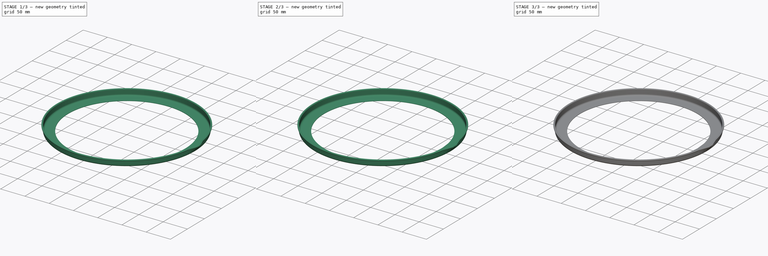
[diagram: build sequence overview — one tinted view per stage of 3, left to right]
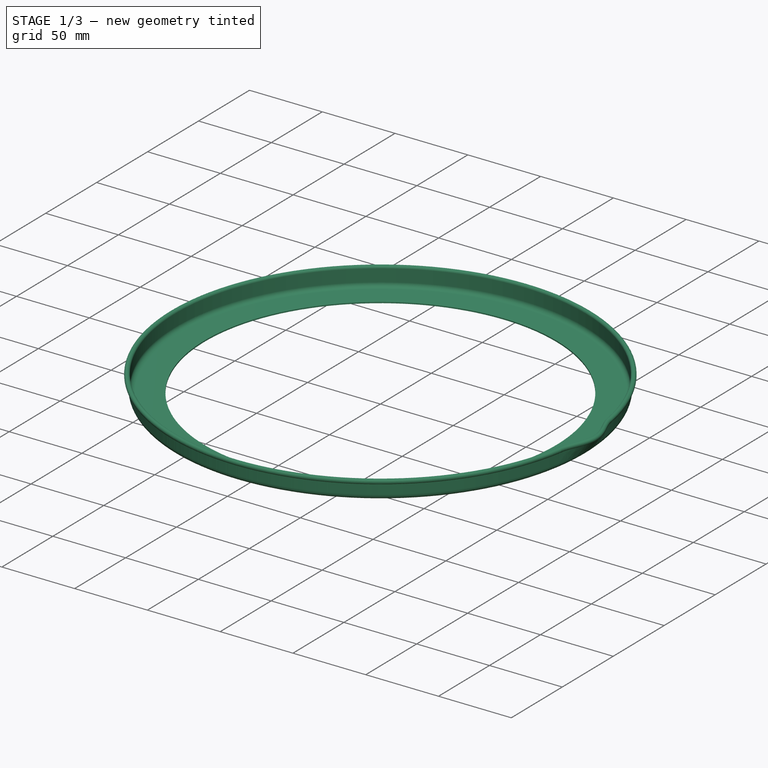
[diagram: stage 1 of 3 — iso view after this stage's code; geometry added in this stage tinted green]
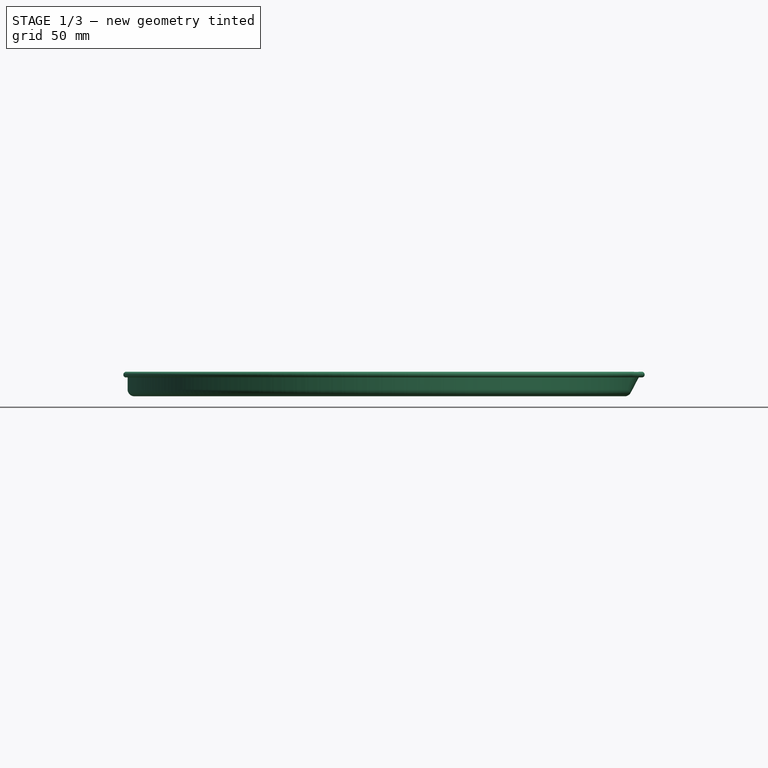
[diagram: stage 1 of 3 — front view after this stage's code; geometry added in this stage tinted green]
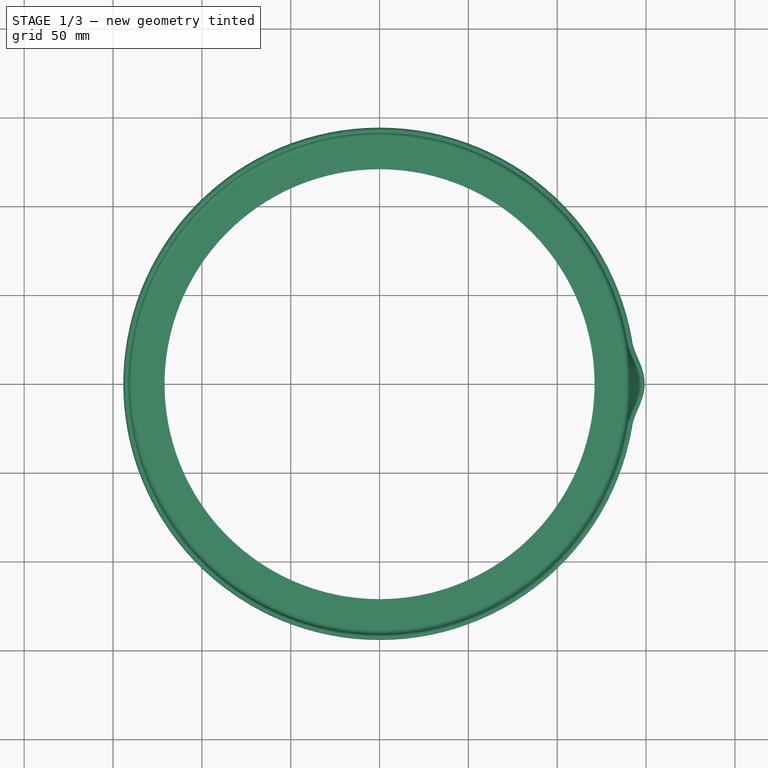
[diagram: stage 1 of 3 — top view after this stage's code; geometry added in this stage tinted green]
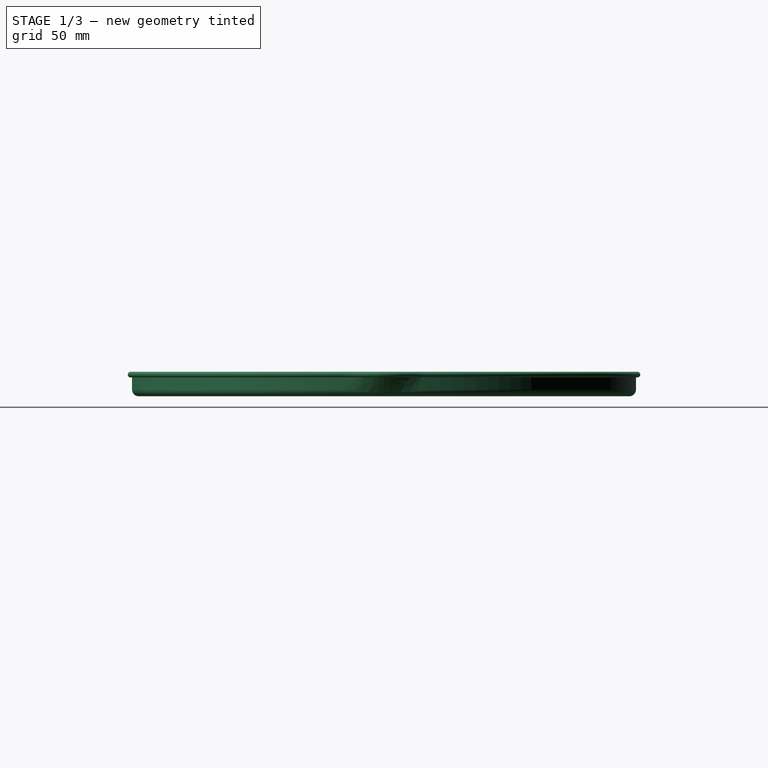
[diagram: stage 1 of 3 — right view after this stage's code; geometry added in this stage tinted green]
FCSTD DOCUMENT  (FreeCAD 1.0R39319 (Git))
Label: pour-ring
License: All rights reserved
objects: Sketcher::SketchObject×9, PartDesign::Revolution×3, PartDesign::AdditiveLoft×3, PartDesign::Body×3, PartDesign::Mirrored×2
note: 43 computed .brp shape members not serialized (recipe doc carries the construction recipe); baked Part::Feature solids carry a one-line shape summary decoded from their .brp

FEATURE [PartDesign::Body] Body  label="Sharp Spout"
  AllowCompound = false
  Group = -> [Sketch,Revolution,Sketch001,AdditiveLoft,Mirrored]
  Origin = -> Origin
  Placement = pos=(0,0,50) rot=(0,0,1;0rad)
  Tip = -> Mirrored
FEATURE [Sketcher::SketchObject] Sketch002
  ArcFitTolerance = 1e-06
  AttachmentSupport = -> [XZ_Plane001]
  FullyConstrained = true
  MakeInternals = false
  MapMode = 5
  Placement = pos=(0,0,0) rot=(1,0,0;1.5708rad)
  sketch-geometry (12):
    g0: LineSegment StartX=-121 StartY=0 StartZ=0 EndX=-138 EndY=2.389e-13 EndZ=0
    g1: LineSegment StartX=-141.8 StartY=3.8 StartZ=0 EndX=-141.8 EndY=12.2 EndZ=0
    g2: ArcOfCircle CenterX=-142.6 CenterY=12.2 CenterZ=0 NormalX=0 NormalY=0 NormalZ=1 AngleXU=0 Radius=0.8 StartAngle=3e-16 EndAngle=5.16521
    g3: ArcOfCircle CenterX=-138 CenterY=3.8 CenterZ=0 NormalX=0 NormalY=0 NormalZ=1 AngleXU=0 Radius=3.8 StartAngle=3.14159 EndAngle=4.71239
    g4: GeomPoint [constr] X=-141.8 Y=0 Z=0
    g5: ArcOfCircle CenterX=-142.6 CenterY=12.2 CenterZ=0 NormalX=0 NormalY=0 NormalZ=1 AngleXU=0 Radius=1.6 StartAngle=-9.8e-15 EndAngle=5.16521
    g6: LineSegment StartX=-121 StartY=0.8 StartZ=0 EndX=-138 EndY=0.8 EndZ=0
    g7: ArcOfCircle CenterX=-138 CenterY=3.8 CenterZ=0 NormalX=0 NormalY=0 NormalZ=1 AngleXU=0 Radius=3 StartAngle=3.14159 EndAngle=4.71239
    g8: LineSegment StartX=-141 StartY=3.8 StartZ=0 EndX=-141 EndY=12.2 EndZ=0
    g9: LineSegment StartX=-142.25 StartY=11.4806 StartZ=0 EndX=-141.9 EndY=10.7613 EndZ=0
    g10: LineSegment StartX=-121 StartY=0.8 StartZ=0 EndX=-121 EndY=0 EndZ=0
    g11: GeomPoint X=-142.6 Y=13.8 Z=0
  constraints (31):
    c: PointOnObject(g0,g-1)
    c: PointOnObject(g4,g-1)
    c: Vertical(g1)
    c: Coincident(g2,g1)
    c: Horizontal(g2,g1)
    c: PointOnObject(g4,g1)
    c: PointOnObject(g4,g0)
    c: Tangent(g1,g3) = 1.5708
    c: Tangent(g0,g3) = 1.5708
    c: Radius(g3) = 3.8
    c: Radius(g2) = 0.8
    c: DistanceX(g0,g0) = 17
    c: DistanceX(g0,g-1) = 121
    c: Tangent(g5,g8) = -1.5708
    c: Tangent(g6,g7) = 1.5708
    c: Tangent(g7,g8) = 1.5708
    c: Parallel(g8,g1)
    c: Coincident(g5,g2)
    c: Parallel(g6,g0)
    c: Coincident(g7,g3)
    c: Coincident(g9,g2)
    c: Coincident(g9,g5)
    c: Coincident(g10,g0)
    c: Equal(g6,g0)
    c: Distance(g9,g9) = 0.8
    c: Coincident(g10,g6)
    c: PointOnObject(g11,g5)
    c: Vertical(g11,g2)
    c: DistanceY(g6,g11) = 13
    c: Perpendicular(g2,g9)
    c: DistanceX(g5,g1) = 0.1
FEATURE [PartDesign::Revolution] Revolution001
  Angle = 170
  Angle2 = 60
  Axis = (0,2e-16,1)
  Base = (0,0,0)
  Placement = pos=(0,0,0) rot=(1,0,0;1.5708rad)
  Profile = -> Sketch002
  ReferenceAxis = -> Sketch002 [V_Axis]
  Refine = true
  Suppressed = false
  Type = 0
FEATURE [Sketcher::SketchObject] Sketch003
  ArcFitTolerance = 1e-06
  AttachmentOffset = pos=(0,0,0) rot=(0,1,0;3.14159rad)
  AttachmentSupport = -> [XZ_Plane001]
  FullyConstrained = true
  MakeInternals = false
  MapMode = 5
  Placement = pos=(0,0,0) rot=(0,0.707107,0.707107;3.14159rad)
  sketch-geometry (12):
    g0: LineSegment StartX=-121 StartY=0 StartZ=0 EndX=-138 EndY=0 EndZ=0
    g1: LineSegment StartX=-141.365 StartY=2.03498 StartZ=0 EndX=-146.892 EndY=12.5716 EndZ=0
    g2: ArcOfCircle CenterX=-147.6 CenterY=12.2 CenterZ=0 NormalX=0 NormalY=0 NormalZ=1 AngleXU=0 Radius=0.8 StartAngle=0.483045 EndAngle=5.64825
    g3: ArcOfCircle CenterX=-138 CenterY=3.8 CenterZ=0 NormalX=0 NormalY=0 NormalZ=1 AngleXU=0 Radius=3.8 StartAngle=3.62464 EndAngle=4.71239
    g4: GeomPoint [constr] X=-140.298 Y=0 Z=0
    g5: ArcOfCircle CenterX=-147.6 CenterY=12.2 CenterZ=0 NormalX=0 NormalY=0 NormalZ=1 AngleXU=0 Radius=1.6 StartAngle=0.483045 EndAngle=5.64825
    g6: LineSegment StartX=-121 StartY=0.8 StartZ=0 EndX=-138 EndY=0.8 EndZ=0
    g7: ArcOfCircle CenterX=-138 CenterY=3.8 CenterZ=0 NormalX=0 NormalY=0 NormalZ=1 AngleXU=0 Radius=3 StartAngle=3.62464 EndAngle=4.71239
    g8: LineSegment StartX=-140.657 StartY=2.40657 StartZ=0 EndX=-146.183 EndY=12.9432 EndZ=0
    g9: LineSegment StartX=-146.956 StartY=11.7255 StartZ=0 EndX=-146.312 EndY=11.251 EndZ=0
    g10: LineSegment StartX=-121 StartY=0.8 StartZ=0 EndX=-121 EndY=0 EndZ=0
    g11: GeomPoint X=-147.6 Y=13.8 Z=0
  constraints (30):
    c: PointOnObject(g0,g-1)
    c: PointOnObject(g4,g-1)
    c: PointOnObject(g4,g1)
    c: PointOnObject(g4,g0)
    c: Tangent(g1,g3) = 1.5708
    c: Tangent(g0,g3) = 1.5708
    c: Radius(g3) = 3.8
    c: Radius(g2) = 0.8
    c: DistanceX(g0,g0) = 17
    c: DistanceX(g0,g-1) = 121
    c: Tangent(g5,g8) = -1.5708
    c: Tangent(g6,g7) = 1.5708
    c: Tangent(g7,g8) = 1.5708
    c: Parallel(g8,g1)
    c: Coincident(g5,g2)
    c: Parallel(g6,g0)
    c: Coincident(g7,g3)
    c: Coincident(g9,g2)
    c: Coincident(g9,g5)
    c: Coincident(g10,g0)
    c: Equal(g6,g0)
    c: Distance(g9,g9) = 0.8
    c: Coincident(g10,g6)
    c: PointOnObject(g11,g5)
    c: Vertical(g11,g2)
    c: DistanceY(g6,g11) = 13
    c: Perpendicular(g2,g9)
    c: Tangent(g2,g1) = -1.5708
    c: Distance(g11,g-2) = 147.6
    c: Distance(g5,g1) = 0.1
FEATURE [Sketcher::SketchObject] Sketch004
  ArcFitTolerance = 1e-06
  AttachmentSupport = -> [XZ_Plane002]
  FullyConstrained = true
  MakeInternals = false
  MapMode = 5
  Placement = pos=(0,0,0) rot=(1,0,0;1.5708rad)
  sketch-geometry (12):
    g0: LineSegment StartX=-121 StartY=0 StartZ=0 EndX=-138 EndY=2.744e-13 EndZ=0
    g1: LineSegment StartX=-141.8 StartY=3.8 StartZ=0 EndX=-141.8 EndY=12.2 EndZ=0
    g2: ArcOfCircle CenterX=-142.6 CenterY=12.2 CenterZ=0 NormalX=0 NormalY=0 NormalZ=1 AngleXU=0 Radius=0.8 StartAngle=3e-16 EndAngle=5.16521
    g3: ArcOfCircle CenterX=-138 CenterY=3.8 CenterZ=0 NormalX=0 NormalY=0 NormalZ=1 AngleXU=0 Radius=3.8 StartAngle=3.14159 EndAngle=4.71239
    g4: GeomPoint [constr] X=-141.8 Y=0 Z=0
    g5: ArcOfCircle CenterX=-142.6 CenterY=12.2 CenterZ=0 NormalX=0 NormalY=0 NormalZ=1 AngleXU=0 Radius=1.6 StartAngle=-1.15e-14 EndAngle=5.16521
    g6: LineSegment StartX=-121 StartY=0.8 StartZ=0 EndX=-138 EndY=0.8 EndZ=0
    g7: ArcOfCircle CenterX=-138 CenterY=3.8 CenterZ=0 NormalX=0 NormalY=0 NormalZ=1 AngleXU=0 Radius=3 StartAngle=3.14159 EndAngle=4.71239
    g8: LineSegment StartX=-141 StartY=3.8 StartZ=0 EndX=-141 EndY=12.2 EndZ=0
    g9: LineSegment StartX=-142.25 StartY=11.4806 StartZ=0 EndX=-141.9 EndY=10.7613 EndZ=0
    g10: LineSegment StartX=-121 StartY=0.8 StartZ=0 EndX=-121 EndY=0 EndZ=0
    g11: GeomPoint X=-142.6 Y=13.8 Z=0
  constraints (32):
    c: PointOnObject(g0,g-1)
    c: PointOnObject(g4,g-1)
    c: Vertical(g1)
    c: Coincident(g2,g1)
    c: Horizontal(g2,g1)
    c: PointOnObject(g4,g1)
    c: PointOnObject(g4,g0)
    c: Tangent(g1,g3) = 1.5708
    c: Tangent(g0,g3) = 1.5708
    c: Radius(g3) = 3.8
    c: Radius(g2) = 0.8
    c: DistanceX(g0,g0) = 17
    c: DistanceX(g0,g-1) = 121
    c: Tangent(g5,g8) = -1.5708
    c: Tangent(g6,g7) = 1.5708
    c: Tangent(g7,g8) = 1.5708
    c: Parallel(g8,g1)
    c: Coincident(g5,g2)
    c: Parallel(g6,g0)
    c: Coincident(g7,g3)
    c: Coincident(g9,g2)
    c: Coincident(g9,g5)
    c: Coincident(g10,g0)
    c: Equal(g6,g0)
    c: Distance(g9,g9) = 0.8
    c: Coincident(g10,g6)
    c: PointOnObject(g11,g5)
    c: Vertical(g11,g2)
    c: DistanceY(g6,g11) = 13
    c: Perpendicular(g2,g9)
    c: DistanceX(g5,g1) = 0.1
    c: DistanceX(g11,g-1) = 142.6
FEATURE [PartDesign::Revolution] Revolution002
  Angle = 340
  Angle2 = 60
  Axis = (0,2e-16,1)
  Base = (0,0,0)
  Midplane = true
  Placement = pos=(0,0,0) rot=(1,0,0;1.5708rad)
  Profile = -> Sketch004
  ReferenceAxis = -> Sketch004 [V_Axis]
  Refine = true
  Suppressed = false
  Type = 0
FEATURE [PartDesign::Body] Body001  label="Bevel Spout"
  AllowCompound = false
  Group = -> [Sketch002,Revolution001,Sketch003,AdditiveLoft001,Mirrored001,Sketch006]
  Origin = -> Origin001
  Tip = -> Mirrored001
FEATURE [Sketcher::SketchObject] Sketch007  label="Left"
  ArcFitTolerance = 1e-06
  AttachmentOffset = pos=(0,0,0) rot=(0,1,0;2.98451rad)
  AttachmentSupport = -> [XZ_Plane002]
  FullyConstrained = true
  MakeInternals = false
  MapMode = 5
  Placement = pos=(0,0,0) rot=(0.055565,0.706014,0.706014;3.03058rad)
  sketch-geometry (12):
    g0: LineSegment StartX=-121 StartY=0 StartZ=0 EndX=-138 EndY=2.389e-13 EndZ=0
    g1: LineSegment StartX=-141.8 StartY=3.8 StartZ=0 EndX=-141.8 EndY=12.2 EndZ=0
    g2: ArcOfCircle CenterX=-142.6 CenterY=12.2 CenterZ=0 NormalX=0 NormalY=0 NormalZ=1 AngleXU=0 Radius=0.8 StartAngle=3e-16 EndAngle=5.16521
    g3: ArcOfCircle CenterX=-138 CenterY=3.8 CenterZ=0 NormalX=0 NormalY=0 NormalZ=1 AngleXU=0 Radius=3.8 StartAngle=3.14159 EndAngle=4.71239
    g4: GeomPoint [constr] X=-141.8 Y=0 Z=0
    g5: ArcOfCircle CenterX=-142.6 CenterY=12.2 CenterZ=0 NormalX=0 NormalY=0 NormalZ=1 AngleXU=0 Radius=1.6 StartAngle=-9.8e-15 EndAngle=5.16521
    g6: LineSegment StartX=-121 StartY=0.8 StartZ=0 EndX=-138 EndY=0.8 EndZ=0
    g7: ArcOfCircle CenterX=-138 CenterY=3.8 CenterZ=0 NormalX=0 NormalY=0 NormalZ=1 AngleXU=0 Radius=3 StartAngle=3.14159 EndAngle=4.71239
    g8: LineSegment StartX=-141 StartY=3.8 StartZ=0 EndX=-141 EndY=12.2 EndZ=0
    g9: LineSegment StartX=-142.25 StartY=11.4806 StartZ=0 EndX=-141.9 EndY=10.7613 EndZ=0
    g10: LineSegment StartX=-121 StartY=0.8 StartZ=0 EndX=-121 EndY=0 EndZ=0
    g11: GeomPoint X=-142.6 Y=13.8 Z=0
  constraints (31):
    c: PointOnObject(g0,g-1)
    c: PointOnObject(g4,g-1)
    c: Vertical(g1)
    c: Coincident(g2,g1)
    c: Horizontal(g2,g1)
    c: PointOnObject(g4,g1)
    c: PointOnObject(g4,g0)
    c: Tangent(g1,g3) = 1.5708
    c: Tangent(g0,g3) = 1.5708
    c: Radius(g3) = 3.8
    c: Radius(g2) = 0.8
    c: DistanceX(g0,g0) = 17
    c: DistanceX(g0,g-1) = 121
    c: Tangent(g5,g8) = -1.5708
    c: Tangent(g6,g7) = 1.5708
    c: Tangent(g7,g8) = 1.5708
    c: Parallel(g8,g1)
    c: Coincident(g5,g2)
    c: Parallel(g6,g0)
    c: Coincident(g7,g3)
    c: Coincident(g9,g2)
    c: Coincident(g9,g5)
    c: Coincident(g10,g0)
    c: Equal(g6,g0)
    c: Distance(g9,g9) = 0.8
    c: Coincident(g10,g6)
    c: PointOnObject(g11,g5)
    c: Vertical(g11,g2)
    c: DistanceY(g6,g11) = 13
    c: Perpendicular(g2,g9)
    c: DistanceX(g5,g1) = 0.1
FEATURE [Sketcher::SketchObject] Sketch008  label="Right"
  ArcFitTolerance = 1e-06
  AttachmentOffset = pos=(0,0,0) rot=(0,1,0;3.29867rad)
  AttachmentSupport = -> [XZ_Plane002]
  FullyConstrained = true
  MakeInternals = false
  MapMode = 5
  Placement = pos=(0,0,0) rot=(-0.055565,0.706014,0.706014;3.25261rad)
  sketch-geometry (12):
    g0: LineSegment StartX=-121 StartY=0 StartZ=0 EndX=-138 EndY=-2.62e-14 EndZ=0
    g1: LineSegment StartX=-141.8 StartY=3.8 StartZ=0 EndX=-141.8 EndY=12.2 EndZ=0
    g2: ArcOfCircle CenterX=-142.6 CenterY=12.2 CenterZ=0 NormalX=0 NormalY=0 NormalZ=1 AngleXU=0 Radius=0.8 StartAngle=3e-16 EndAngle=5.16521
    g3: ArcOfCircle CenterX=-138 CenterY=3.8 CenterZ=0 NormalX=0 NormalY=0 NormalZ=1 AngleXU=0 Radius=3.8 StartAngle=3.14159 EndAngle=4.71239
    g4: GeomPoint [constr] X=-141.8 Y=0 Z=0
    g5: ArcOfCircle CenterX=-142.6 CenterY=12.2 CenterZ=0 NormalX=0 NormalY=0 NormalZ=1 AngleXU=0 Radius=1.6 StartAngle=-9.8e-15 EndAngle=5.16521
    g6: LineSegment StartX=-121 StartY=0.8 StartZ=0 EndX=-138 EndY=0.8 EndZ=0
    g7: ArcOfCircle CenterX=-138 CenterY=3.8 CenterZ=0 NormalX=0 NormalY=0 NormalZ=1 AngleXU=0 Radius=3 StartAngle=3.14159 EndAngle=4.71239
    g8: LineSegment StartX=-141 StartY=3.8 StartZ=0 EndX=-141 EndY=12.2 EndZ=0
    g9: LineSegment StartX=-142.25 StartY=11.4806 StartZ=0 EndX=-141.9 EndY=10.7613 EndZ=0
    g10: LineSegment StartX=-121 StartY=0.8 StartZ=0 EndX=-121 EndY=0 EndZ=0
    g11: GeomPoint X=-142.6 Y=13.8 Z=0
  constraints (31):
    c: PointOnObject(g0,g-1)
    c: PointOnObject(g4,g-1)
    c: Vertical(g1)
    c: Coincident(g2,g1)
    c: Horizontal(g2,g1)
    c: PointOnObject(g4,g1)
    c: PointOnObject(g4,g0)
    c: Tangent(g1,g3) = 1.5708
    c: Tangent(g0,g3) = 1.5708
    c: Radius(g3) = 3.8
    c: Radius(g2) = 0.8
    c: DistanceX(g0,g0) = 17
    c: DistanceX(g0,g-1) = 121
    c: Tangent(g5,g8) = -1.5708
    c: Tangent(g6,g7) = 1.5708
    c: Tangent(g7,g8) = 1.5708
    c: Parallel(g8,g1)
    c: Coincident(g5,g2)
    c: Parallel(g6,g0)
    c: Coincident(g7,g3)
    c: Coincident(g9,g2)
    c: Coincident(g9,g5)
    c: Coincident(g10,g0)
    c: Equal(g6,g0)
    c: Distance(g9,g9) = 0.8
    c: Coincident(g10,g6)
    c: PointOnObject(g11,g5)
    c: Vertical(g11,g2)
    c: DistanceY(g6,g11) = 13
    c: Perpendicular(g2,g9)
    c: DistanceX(g5,g1) = 0.1
FEATURE [PartDesign::AdditiveLoft] AdditiveLoft002
  BaseFeature = -> Revolution002
  Closed = false
  Placement = pos=(0,0,0) rot=(1,0,0;1.5708rad)
  Profile = -> Revolution002 [Face12]
  Refine = true
  Ruled = false
  Sections = -> [Sketch007,Sketch005,Sketch008,Revolution002]
  Suppressed = false
FEATURE [PartDesign::Body] Body002  label="Curved Spout"
  AllowCompound = false
  Group = -> [Sketch004,Revolution002,Sketch005,AdditiveLoft002,Sketch007,Sketch008]
  Origin = -> Origin002
  Placement = pos=(0,0,-50) rot=(0,0,1;0rad)
  Tip = -> AdditiveLoft002
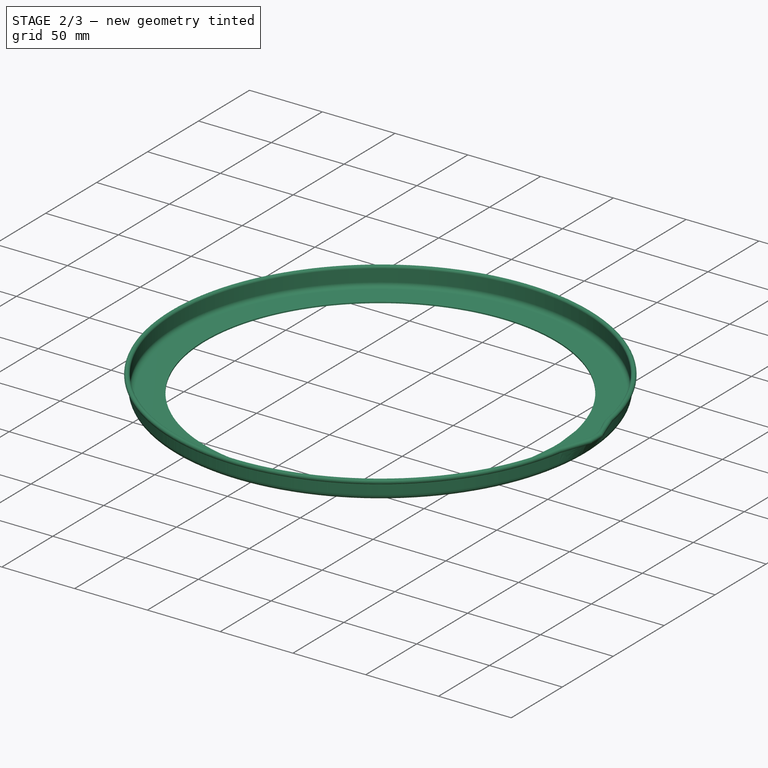
[diagram: stage 2 of 3 — iso view after this stage's code; geometry added in this stage tinted green]
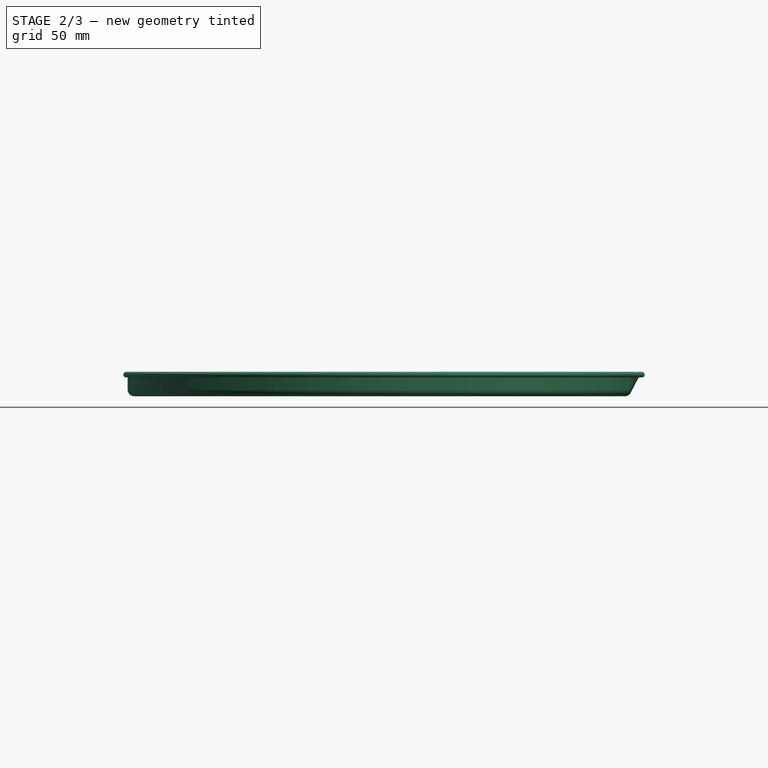
[diagram: stage 2 of 3 — front view after this stage's code; geometry added in this stage tinted green]
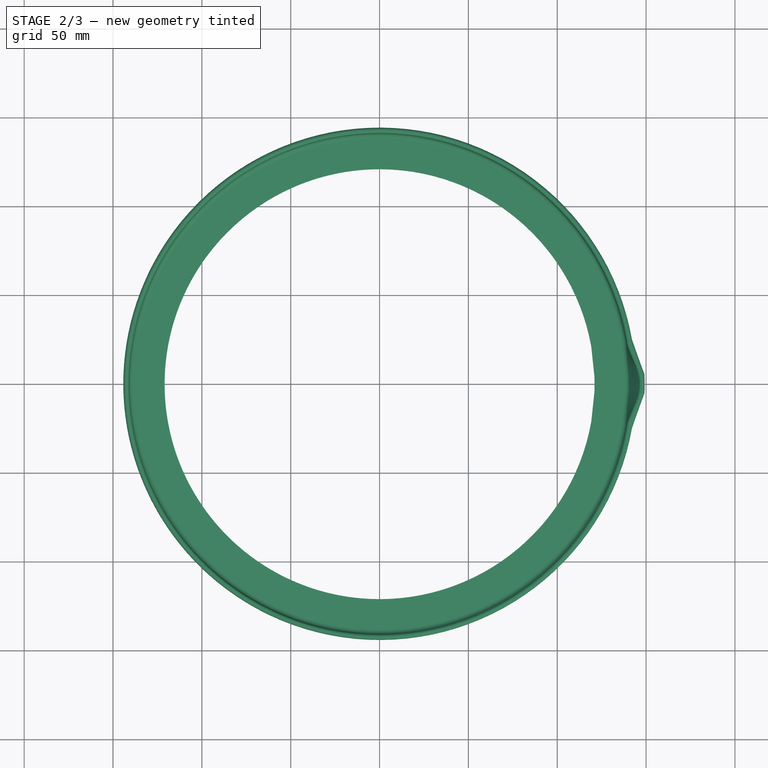
[diagram: stage 2 of 3 — top view after this stage's code; geometry added in this stage tinted green]
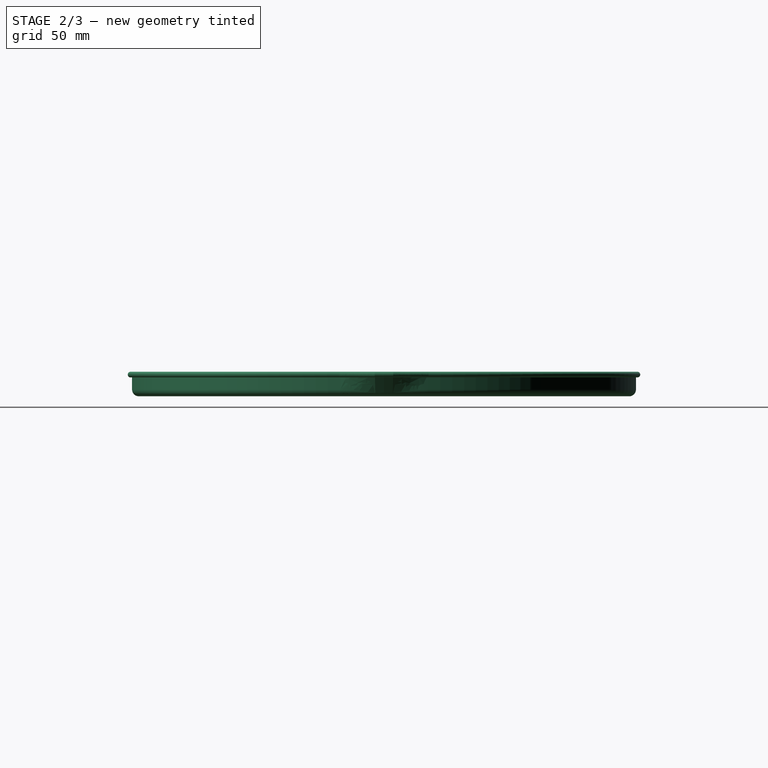
[diagram: stage 2 of 3 — right view after this stage's code; geometry added in this stage tinted green]
FEATURE [Sketcher::SketchObject] Sketch005  label="Center"
  ArcFitTolerance = 1e-06
  AttachmentOffset = pos=(0,0,0) rot=(0,1,0;3.14159rad)
  AttachmentSupport = -> [XZ_Plane002]
  FullyConstrained = true
  MakeInternals = false
  MapMode = 5
  Placement = pos=(0,0,0) rot=(0,0.707107,0.707107;3.14159rad)
  sketch-geometry (12):
    g0: LineSegment StartX=-121 StartY=0 StartZ=0 EndX=-138 EndY=0 EndZ=0
    g1: LineSegment StartX=-141.365 StartY=2.03498 StartZ=0 EndX=-146.892 EndY=12.5716 EndZ=0
    g2: ArcOfCircle CenterX=-147.6 CenterY=12.2 CenterZ=0 NormalX=0 NormalY=0 NormalZ=1 AngleXU=0 Radius=0.8 StartAngle=0.483045 EndAngle=5.64825
    g3: ArcOfCircle CenterX=-138 CenterY=3.8 CenterZ=0 NormalX=0 NormalY=0 NormalZ=1 AngleXU=0 Radius=3.8 StartAngle=3.62464 EndAngle=4.71239
    g4: GeomPoint [constr] X=-140.298 Y=0 Z=0
    g5: ArcOfCircle CenterX=-147.6 CenterY=12.2 CenterZ=0 NormalX=0 NormalY=0 NormalZ=1 AngleXU=0 Radius=1.6 StartAngle=0.483045 EndAngle=5.64825
    g6: LineSegment StartX=-121 StartY=0.8 StartZ=0 EndX=-138 EndY=0.8 EndZ=0
    g7: ArcOfCircle CenterX=-138 CenterY=3.8 CenterZ=0 NormalX=0 NormalY=0 NormalZ=1 AngleXU=0 Radius=3 StartAngle=3.62464 EndAngle=4.71239
    g8: LineSegment StartX=-140.657 StartY=2.40657 StartZ=0 EndX=-146.183 EndY=12.9432 EndZ=0
    g9: LineSegment StartX=-146.956 StartY=11.7255 StartZ=0 EndX=-146.312 EndY=11.251 EndZ=0
    g10: LineSegment StartX=-121 StartY=0.8 StartZ=0 EndX=-121 EndY=0 EndZ=0
    g11: GeomPoint X=-147.6 Y=13.8 Z=0
  constraints (30):
    c: PointOnObject(g0,g-1)
    c: PointOnObject(g4,g-1)
    c: PointOnObject(g4,g1)
    c: PointOnObject(g4,g0)
    c: Tangent(g1,g3) = 1.5708
    c: Tangent(g0,g3) = 1.5708
    c: Radius(g3) = 3.8
    c: Radius(g2) = 0.8
    c: DistanceX(g0,g0) = 17
    c: DistanceX(g0,g-1) = 121
    c: Tangent(g5,g8) = -1.5708
    c: Tangent(g6,g7) = 1.5708
    c: Tangent(g7,g8) = 1.5708
    c: Parallel(g8,g1)
    c: Coincident(g5,g2)
    c: Parallel(g6,g0)
    c: Coincident(g7,g3)
    c: Coincident(g9,g2)
    c: Coincident(g9,g5)
    c: Coincident(g10,g0)
    c: Equal(g6,g0)
    c: Distance(g9,g9) = 0.8
    c: Coincident(g10,g6)
    c: PointOnObject(g11,g5)
    c: Vertical(g11,g2)
    c: DistanceY(g6,g11) = 13
    c: Perpendicular(g2,g9)
    c: Tangent(g2,g1) = -1.5708
    c: Distance(g11,g-2) = 147.6
    c: Distance(g5,g1) = 0.1
FEATURE [Sketcher::SketchObject] Sketch006
  ArcFitTolerance = 1e-06
  AttachmentOffset = pos=(0,0,0) rot=(0,1,0;3.10669rad)
  AttachmentSupport = -> [XZ_Plane001]
  FullyConstrained = true
  MakeInternals = false
  MapMode = 5
  Placement = pos=(0,0,0) rot=(0.012342,0.707053,0.707053;3.11691rad)
  sketch-geometry (12):
    g0: LineSegment StartX=-121 StartY=0 StartZ=0 EndX=-138 EndY=0 EndZ=0
    g1: LineSegment StartX=-141.365 StartY=2.03498 StartZ=0 EndX=-146.892 EndY=12.5716 EndZ=0
    g2: ArcOfCircle CenterX=-147.6 CenterY=12.2 CenterZ=0 NormalX=0 NormalY=0 NormalZ=1 AngleXU=0 Radius=0.8 StartAngle=0.483045 EndAngle=5.64825
    g3: ArcOfCircle CenterX=-138 CenterY=3.8 CenterZ=0 NormalX=0 NormalY=0 NormalZ=1 AngleXU=0 Radius=3.8 StartAngle=3.62464 EndAngle=4.71239
    g4: GeomPoint [constr] X=-140.298 Y=0 Z=0
    g5: ArcOfCircle CenterX=-147.6 CenterY=12.2 CenterZ=0 NormalX=0 NormalY=0 NormalZ=1 AngleXU=0 Radius=1.6 StartAngle=0.483045 EndAngle=5.64825
    g6: LineSegment StartX=-121 StartY=0.8 StartZ=0 EndX=-138 EndY=0.8 EndZ=0
    g7: ArcOfCircle CenterX=-138 CenterY=3.8 CenterZ=0 NormalX=0 NormalY=0 NormalZ=1 AngleXU=0 Radius=3 StartAngle=3.62464 EndAngle=4.71239
    g8: LineSegment StartX=-140.657 StartY=2.40657 StartZ=0 EndX=-146.183 EndY=12.9432 EndZ=0
    g9: LineSegment StartX=-146.956 StartY=11.7255 StartZ=0 EndX=-146.312 EndY=11.251 EndZ=0
    g10: LineSegment StartX=-121 StartY=0.8 StartZ=0 EndX=-121 EndY=0 EndZ=0
    g11: GeomPoint X=-147.6 Y=13.8 Z=0
  constraints (30):
    c: PointOnObject(g0,g-1)
    c: PointOnObject(g4,g-1)
    c: PointOnObject(g4,g1)
    c: PointOnObject(g4,g0)
    c: Tangent(g1,g3) = 1.5708
    c: Tangent(g0,g3) = 1.5708
    c: Radius(g3) = 3.8
    c: Radius(g2) = 0.8
    c: DistanceX(g0,g0) = 17
    c: DistanceX(g0,g-1) = 121
    c: Tangent(g5,g8) = -1.5708
    c: Tangent(g6,g7) = 1.5708
    c: Tangent(g7,g8) = 1.5708
    c: Parallel(g8,g1)
    c: Coincident(g5,g2)
    c: Parallel(g6,g0)
    c: Coincident(g7,g3)
    c: Coincident(g9,g2)
    c: Coincident(g9,g5)
    c: Coincident(g10,g0)
    c: Equal(g6,g0)
    c: Distance(g9,g9) = 0.8
    c: Coincident(g10,g6)
    c: PointOnObject(g11,g5)
    c: Vertical(g11,g2)
    c: DistanceY(g6,g11) = 13
    c: Perpendicular(g2,g9)
    c: Tangent(g2,g1) = -1.5708
    c: Distance(g11,g-2) = 147.6
    c: Distance(g5,g1) = 0.1
FEATURE [PartDesign::AdditiveLoft] AdditiveLoft001
  BaseFeature = -> Revolution001
  Closed = false
  Placement = pos=(0,0,0) rot=(1,0,0;1.5708rad)
  Profile = -> Revolution001 [Face12]
  Refine = true
  Ruled = true
  Sections = -> [Sketch006,Sketch003]
  Suppressed = false
FEATURE [PartDesign::Mirrored] Mirrored001
  BaseFeature = -> AdditiveLoft001
  MirrorPlane = -> XZ_Plane001
  Originals = -> [AdditiveLoft001,Revolution001]
  Placement = pos=(0,0,0) rot=(1,0,0;1.5708rad)
  Refine = true
  Suppressed = false
  TransformMode = 0
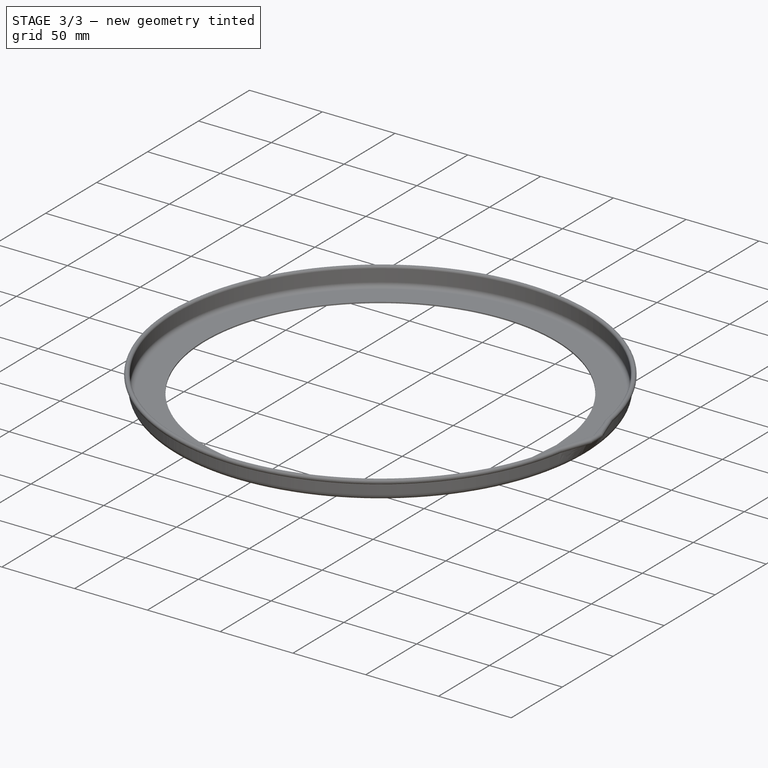
[diagram: stage 3 of 3 — iso view after this stage's code; geometry added in this stage tinted green]
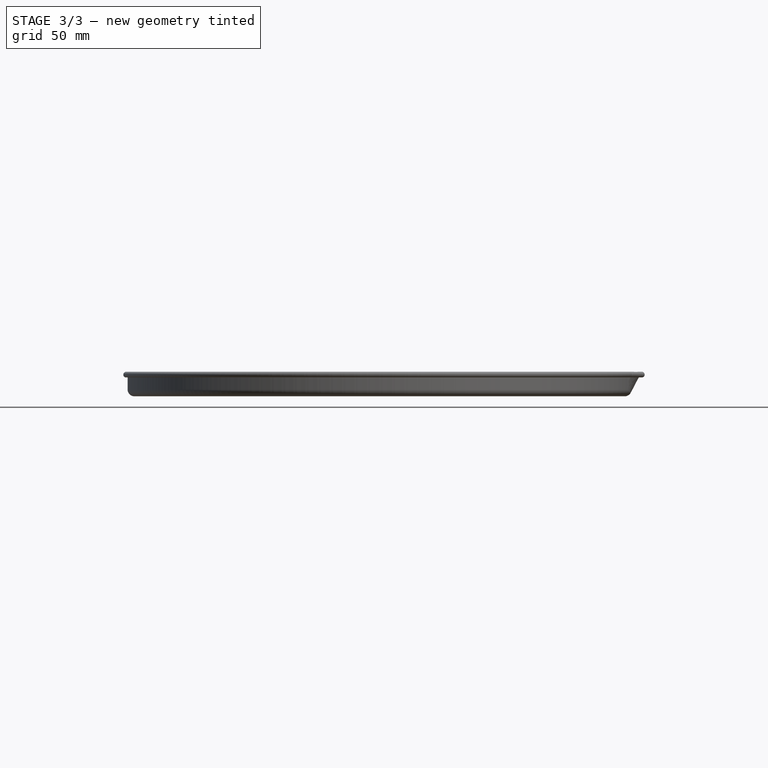
[diagram: stage 3 of 3 — front view after this stage's code; geometry added in this stage tinted green]
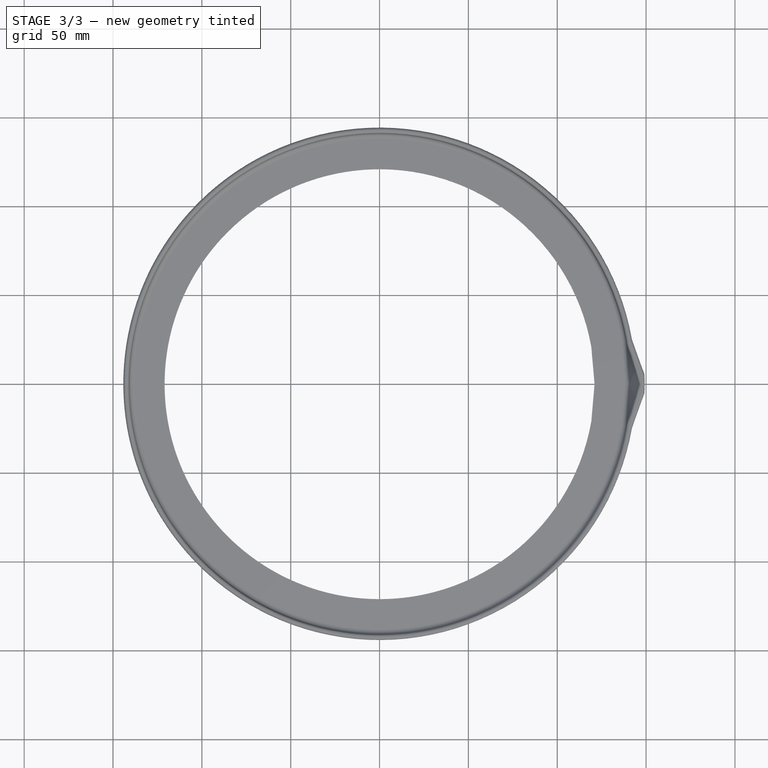
[diagram: stage 3 of 3 — top view after this stage's code; geometry added in this stage tinted green]
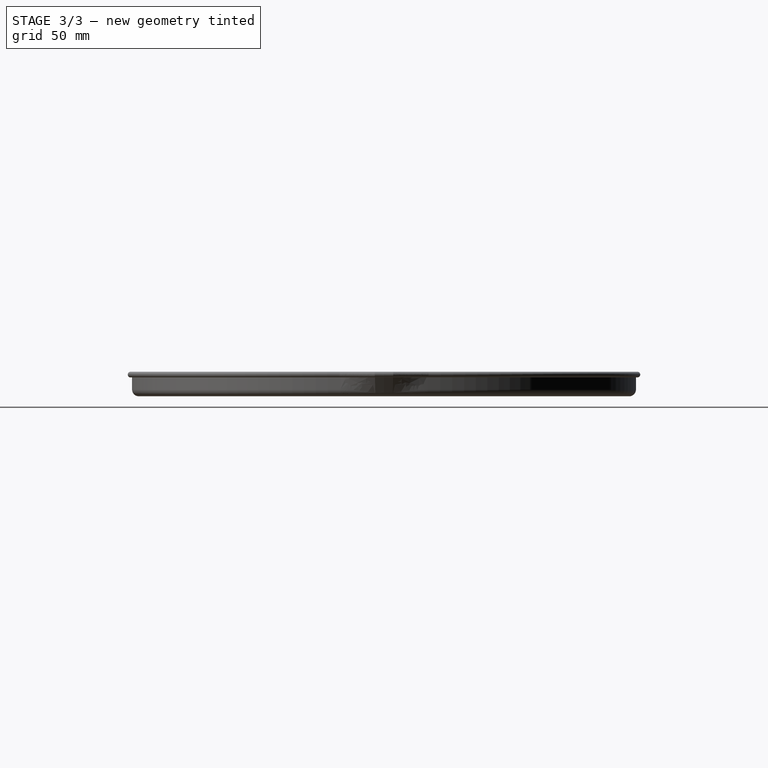
[diagram: stage 3 of 3 — right view after this stage's code; geometry added in this stage tinted green]
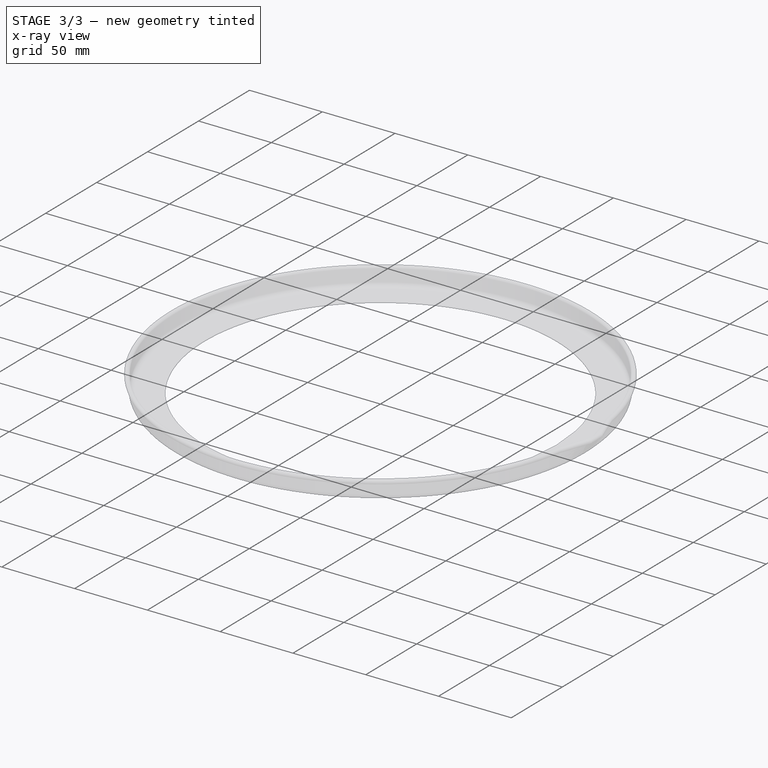
[diagram: stage 3 of 3 — x-ray composite at the iso view; earlier geometry ghosted, this stage's added geometry solid]
FEATURE [Sketcher::SketchObject] Sketch
  ArcFitTolerance = 1e-06
  AttachmentSupport = -> [XZ_Plane]
  FullyConstrained = true
  MakeInternals = false
  MapMode = 5
  Placement = pos=(0,0,0) rot=(1,0,0;1.5708rad)
  sketch-geometry (12):
    g0: LineSegment StartX=-121 StartY=0 StartZ=0 EndX=-138 EndY=2.389e-13 EndZ=0
    g1: LineSegment StartX=-141.8 StartY=3.8 StartZ=0 EndX=-141.8 EndY=12.2 EndZ=0
    g2: ArcOfCircle CenterX=-142.6 CenterY=12.2 CenterZ=0 NormalX=0 NormalY=0 NormalZ=1 AngleXU=0 Radius=0.8 StartAngle=3e-16 EndAngle=5.16521
    g3: ArcOfCircle CenterX=-138 CenterY=3.8 CenterZ=0 NormalX=0 NormalY=0 NormalZ=1 AngleXU=0 Radius=3.8 StartAngle=3.14159 EndAngle=4.71239
    g4: GeomPoint [constr] X=-141.8 Y=0 Z=0
    g5: ArcOfCircle CenterX=-142.6 CenterY=12.2 CenterZ=0 NormalX=0 NormalY=0 NormalZ=1 AngleXU=0 Radius=1.6 StartAngle=-9.8e-15 EndAngle=5.16521
    g6: LineSegment StartX=-121 StartY=0.8 StartZ=0 EndX=-138 EndY=0.8 EndZ=0
    g7: ArcOfCircle CenterX=-138 CenterY=3.8 CenterZ=0 NormalX=0 NormalY=0 NormalZ=1 AngleXU=0 Radius=3 StartAngle=3.14159 EndAngle=4.71239
    g8: LineSegment StartX=-141 StartY=3.8 StartZ=0 EndX=-141 EndY=12.2 EndZ=0
    g9: LineSegment StartX=-142.25 StartY=11.4806 StartZ=0 EndX=-141.9 EndY=10.7613 EndZ=0
    g10: LineSegment StartX=-121 StartY=0.8 StartZ=0 EndX=-121 EndY=0 EndZ=0
    g11: GeomPoint X=-142.6 Y=13.8 Z=0
  constraints (31):
    c: PointOnObject(g0,g-1)
    c: PointOnObject(g4,g-1)
    c: Vertical(g1)
    c: Coincident(g2,g1)
    c: Horizontal(g2,g1)
    c: PointOnObject(g4,g1)
    c: PointOnObject(g4,g0)
    c: Tangent(g1,g3) = 1.5708
    c: Tangent(g0,g3) = 1.5708
    c: Radius(g3) = 3.8
    c: Radius(g2) = 0.8
    c: DistanceX(g0,g0) = 17
    c: DistanceX(g0,g-1) = 121
    c: Tangent(g5,g8) = -1.5708
    c: Tangent(g6,g7) = 1.5708
    c: Tangent(g7,g8) = 1.5708
    c: Parallel(g8,g1)
    c: Coincident(g5,g2)
    c: Parallel(g6,g0)
    c: Coincident(g7,g3)
    c: Coincident(g9,g2)
    c: Coincident(g9,g5)
    c: Coincident(g10,g0)
    c: Equal(g6,g0)
    c: Distance(g9,g9) = 0.8
    c: Coincident(g10,g6)
    c: PointOnObject(g11,g5)
    c: Vertical(g11,g2)
    c: DistanceY(g6,g11) = 13
    c: Perpendicular(g2,g9)
    c: DistanceX(g5,g1) = 0.1
FEATURE [PartDesign::Revolution] Revolution
  Angle = 170
  Angle2 = 60
  Axis = (0,2e-16,1)
  Base = (0,0,0)
  Placement = pos=(0,0,0) rot=(1,0,0;1.5708rad)
  Profile = -> Sketch
  ReferenceAxis = -> Sketch [V_Axis]
  Refine = true
  Suppressed = false
  Type = 0
FEATURE [Sketcher::SketchObject] Sketch001
  ArcFitTolerance = 1e-06
  AttachmentOffset = pos=(0,0,0) rot=(0,1,0;3.14159rad)
  AttachmentSupport = -> [XZ_Plane]
  FullyConstrained = true
  MakeInternals = false
  MapMode = 5
  Placement = pos=(0,0,0) rot=(0,0.707107,0.707107;3.14159rad)
  sketch-geometry (12):
    g0: LineSegment StartX=-121 StartY=0 StartZ=0 EndX=-138 EndY=0 EndZ=0
    g1: LineSegment StartX=-141.365 StartY=2.03498 StartZ=0 EndX=-146.892 EndY=12.5716 EndZ=0
    g2: ArcOfCircle CenterX=-147.6 CenterY=12.2 CenterZ=0 NormalX=0 NormalY=0 NormalZ=1 AngleXU=0 Radius=0.8 StartAngle=0.483045 EndAngle=5.64825
    g3: ArcOfCircle CenterX=-138 CenterY=3.8 CenterZ=0 NormalX=0 NormalY=0 NormalZ=1 AngleXU=0 Radius=3.8 StartAngle=3.62464 EndAngle=4.71239
    g4: GeomPoint [constr] X=-140.298 Y=0 Z=0
    g5: ArcOfCircle CenterX=-147.6 CenterY=12.2 CenterZ=0 NormalX=0 NormalY=0 NormalZ=1 AngleXU=0 Radius=1.6 StartAngle=0.483045 EndAngle=5.64825
    g6: LineSegment StartX=-121 StartY=0.8 StartZ=0 EndX=-138 EndY=0.8 EndZ=0
    g7: ArcOfCircle CenterX=-138 CenterY=3.8 CenterZ=0 NormalX=0 NormalY=0 NormalZ=1 AngleXU=0 Radius=3 StartAngle=3.62464 EndAngle=4.71239
    g8: LineSegment StartX=-140.657 StartY=2.40657 StartZ=0 EndX=-146.183 EndY=12.9432 EndZ=0
    g9: LineSegment StartX=-146.956 StartY=11.7255 StartZ=0 EndX=-146.312 EndY=11.251 EndZ=0
    g10: LineSegment StartX=-121 StartY=0.8 StartZ=0 EndX=-121 EndY=0 EndZ=0
    g11: GeomPoint X=-147.6 Y=13.8 Z=0
  constraints (30):
    c: PointOnObject(g0,g-1)
    c: PointOnObject(g4,g-1)
    c: PointOnObject(g4,g1)
    c: PointOnObject(g4,g0)
    c: Tangent(g1,g3) = 1.5708
    c: Tangent(g0,g3) = 1.5708
    c: Radius(g3) = 3.8
    c: Radius(g2) = 0.8
    c: DistanceX(g0,g0) = 17
    c: DistanceX(g0,g-1) = 121
    c: Tangent(g5,g8) = -1.5708
    c: Tangent(g6,g7) = 1.5708
    c: Tangent(g7,g8) = 1.5708
    c: Parallel(g8,g1)
    c: Coincident(g5,g2)
    c: Parallel(g6,g0)
    c: Coincident(g7,g3)
    c: Coincident(g9,g2)
    c: Coincident(g9,g5)
    c: Coincident(g10,g0)
    c: Equal(g6,g0)
    c: Distance(g9,g9) = 0.8
    c: Coincident(g10,g6)
    c: PointOnObject(g11,g5)
    c: Vertical(g11,g2)
    c: DistanceY(g6,g11) = 13
    c: Perpendicular(g2,g9)
    c: Tangent(g2,g1) = -1.5708
    c: Distance(g11,g-2) = 147.6
    c: Distance(g5,g1) = 0.1
FEATURE [PartDesign::AdditiveLoft] AdditiveLoft
  BaseFeature = -> Revolution
  Closed = false
  Placement = pos=(0,0,0) rot=(1,0,0;1.5708rad)
  Profile = -> Revolution [Face12]
  Refine = true
  Ruled = true
  Sections = -> [Sketch001]
  Suppressed = false
FEATURE [PartDesign::Mirrored] Mirrored
  BaseFeature = -> AdditiveLoft
  MirrorPlane = -> XZ_Plane
  Originals = -> [AdditiveLoft,Revolution]
  Placement = pos=(0,0,0) rot=(1,0,0;1.5708rad)
  Refine = true
  Suppressed = false
  TransformMode = 0
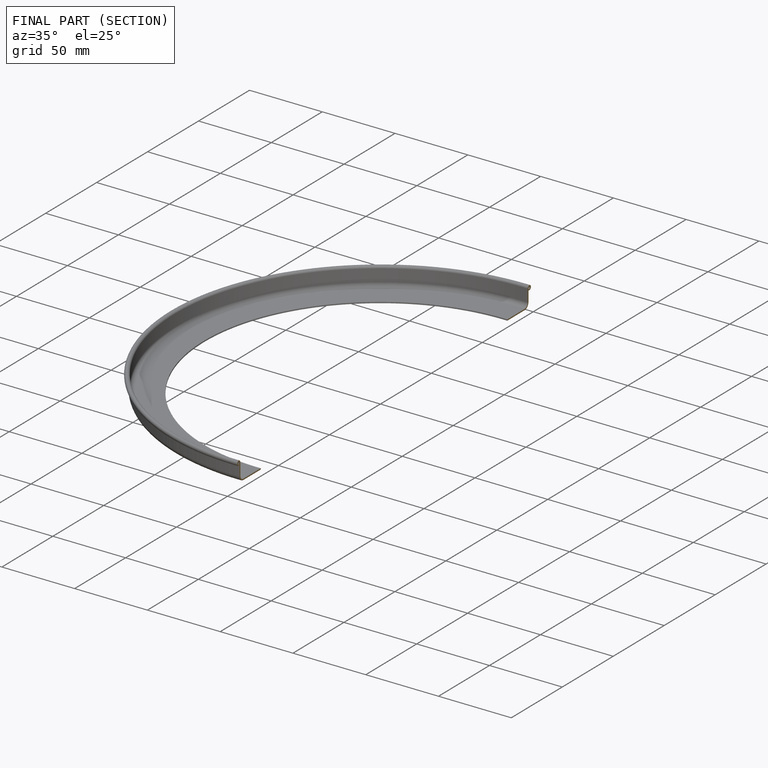
[diagram: finished part — half-section view (interior)]
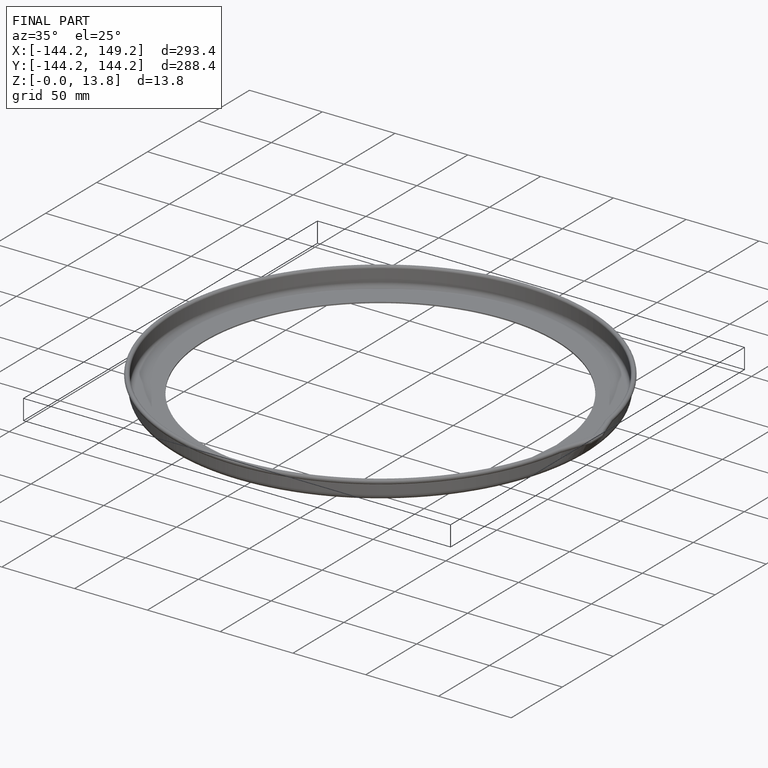
[diagram: finished part — iso view with bounding-box wireframe]
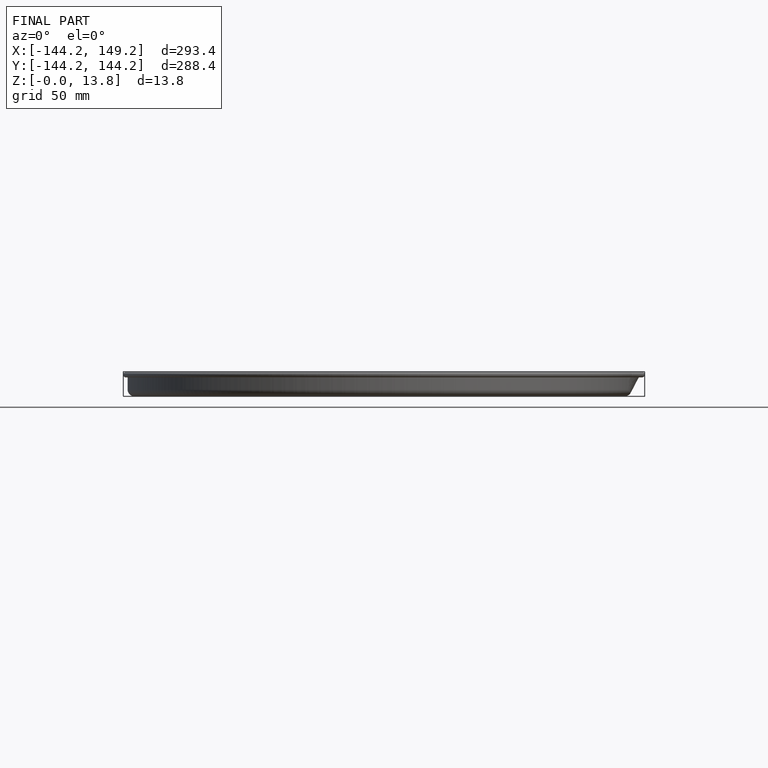
[diagram: finished part — front view with bounding-box wireframe]
